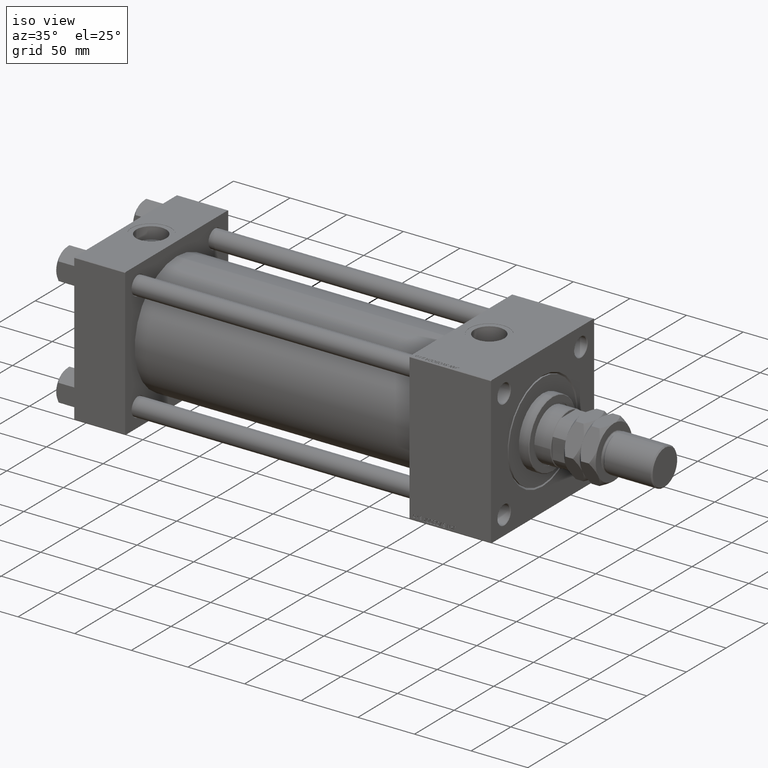
[diagram: clean part render]
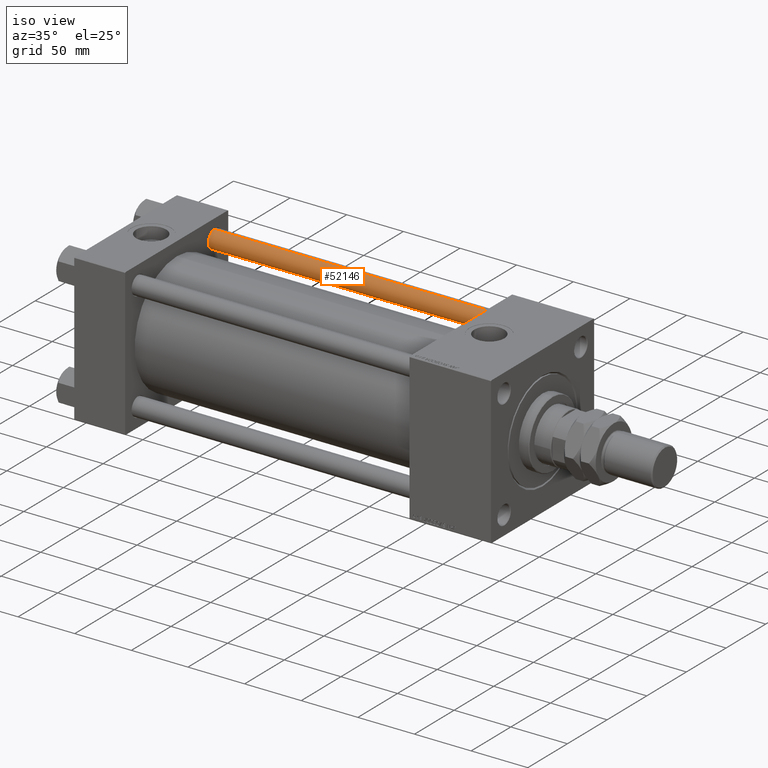
[diagram: same view with one face highlighted and labeled with its STEP entity id]
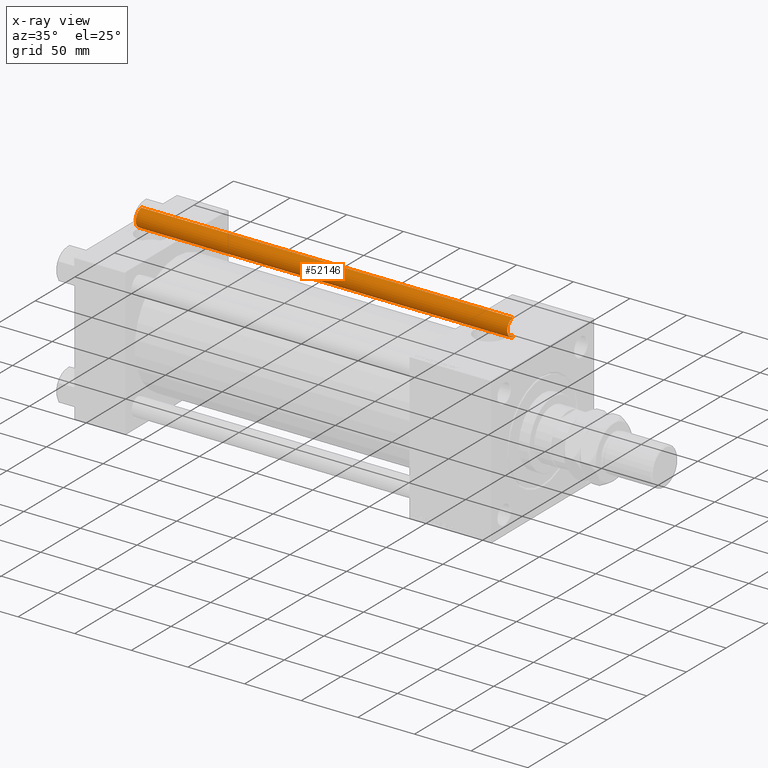
[diagram: x-ray of the same camera — body ghosted, the highlighted face saturated]
A machine part, iso view. The second image highlights one B-rep face of the part: STEP entity #52146.
The next image is the same camera in x-ray: the body ghosted, the highlighted face saturated — about 0% of this face is hidden behind the body in this view.
In plain terms, the highlighted cylindrical surface (edge-blend (fillet) strip) has radius 8 mm, axis along (-1, 0, 0).
Its self-contained STEP definition (entity closure, byte-faithful):
#2673 = CARTESIAN_POINT ( 'NONE',  ( -8.000000000000000000, 0.000000000000000000, 329.0000000000000000 ) ) ;
#3100 = CARTESIAN_POINT ( 'NONE',  ( -8.000000000000000000, 0.000000000000000000, 328.5000000000000000 ) ) ;
#4957 = CIRCLE ( 'NONE', #14257, 8.000000000000000000 ) ;
#6427 = VERTEX_POINT ( 'NONE', #38681 ) ;
#8256 = DIRECTION ( 'NONE',  ( -0.000000000000000000, -0.000000000000000000, -1.000000000000000000 ) ) ;
#8661 = DIRECTION ( 'NONE',  ( 0.000000000000000000, 0.000000000000000000, -1.000000000000000000 ) ) ;
#10803 = VERTEX_POINT ( 'NONE', #11543 ) ;
#11177 = VECTOR ( 'NONE', #42118, 1000.000000000000000 ) ;
#11543 = CARTESIAN_POINT ( 'NONE',  ( 8.000000000000000000, 9.797174393178825657E-16, 328.5000000000000000 ) ) ;
#12369 = AXIS2_PLACEMENT_3D ( 'NONE', #31546, #19623, #47417 ) ;
#14043 = CIRCLE ( 'NONE', #12369, 8.000000000000000000 ) ;
#14257 = AXIS2_PLACEMENT_3D ( 'NONE', #33280, #8661, #49393 ) ;
#14712 = ORIENTED_EDGE ( 'NONE', *, *, #33425, .T. ) ;
#19623 = DIRECTION ( 'NONE',  ( -0.000000000000000000, -0.000000000000000000, 1.000000000000000000 ) ) ;
#23170 = LINE ( 'NONE', #32164, #30132 ) ;
#23434 = ORIENTED_EDGE ( 'NONE', *, *, #44499, .T. ) ;
#23538 = EDGE_CURVE ( 'NONE', #26062, #26815, #50824, .T. ) ;
#24389 = DIRECTION ( 'NONE',  ( -1.000000000000000000, 0.000000000000000000, 0.000000000000000000 ) ) ;
#26062 = VERTEX_POINT ( 'NONE', #3100 ) ;
#26815 = VERTEX_POINT ( 'NONE', #47691 ) ;
#26916 = ORIENTED_EDGE ( 'NONE', *, *, #23538, .T. ) ;
#28350 = CYLINDRICAL_SURFACE ( 'NONE', #35740, 8.000000000000000000 ) ;
#30132 = VECTOR ( 'NONE', #44313, 1000.000000000000000 ) ;
#31546 = CARTESIAN_POINT ( 'NONE',  ( 0.000000000000000000, 0.000000000000000000, 0.4999999999998894218 ) ) ;
#32164 = CARTESIAN_POINT ( 'NONE',  ( 8.000000000000000000, 9.797174393178825657E-16, 329.0000000000000000 ) ) ;
#33280 = CARTESIAN_POINT ( 'NONE',  ( 0.000000000000000000, 0.000000000000000000, 328.5000000000000000 ) ) ;
#33425 = EDGE_CURVE ( 'NONE', #26815, #6427, #14043, .T. ) ;
#33753 = ORIENTED_EDGE ( 'NONE', *, *, #39010, .F. ) ;
#35740 = AXIS2_PLACEMENT_3D ( 'NONE', #47694, #8256, #24389 ) ;
#38681 = CARTESIAN_POINT ( 'NONE',  ( 8.000000000000000000, 9.797174393178825657E-16, 0.4999999999998894218 ) ) ;
#39010 = EDGE_CURVE ( 'NONE', #10803, #6427, #23170, .T. ) ;
#40796 = FACE_OUTER_BOUND ( 'NONE', #42484, .T. ) ;
#42118 = DIRECTION ( 'NONE',  ( -0.000000000000000000, -0.000000000000000000, -1.000000000000000000 ) ) ;
#42484 = EDGE_LOOP ( 'NONE', ( #33753, #23434, #26916, #14712 ) ) ;
#44313 = DIRECTION ( 'NONE',  ( -0.000000000000000000, -0.000000000000000000, -1.000000000000000000 ) ) ;
#44499 = EDGE_CURVE ( 'NONE', #10803, #26062, #4957, .T. ) ;
#47417 = DIRECTION ( 'NONE',  ( 1.000000000000000000, 0.000000000000000000, 0.000000000000000000 ) ) ;
#47691 = CARTESIAN_POINT ( 'NONE',  ( -8.000000000000000000, 0.000000000000000000, 0.4999999999998894218 ) ) ;
#47694 = CARTESIAN_POINT ( 'NONE',  ( 0.000000000000000000, 0.000000000000000000, 329.0000000000000000 ) ) ;
#49393 = DIRECTION ( 'NONE',  ( 1.000000000000000000, 0.000000000000000000, 0.000000000000000000 ) ) ;
#50824 = LINE ( 'NONE', #2673, #11177 ) ;
#52146 = ADVANCED_FACE ( 'NONE', ( #40796 ), #28350, .T. ) ;